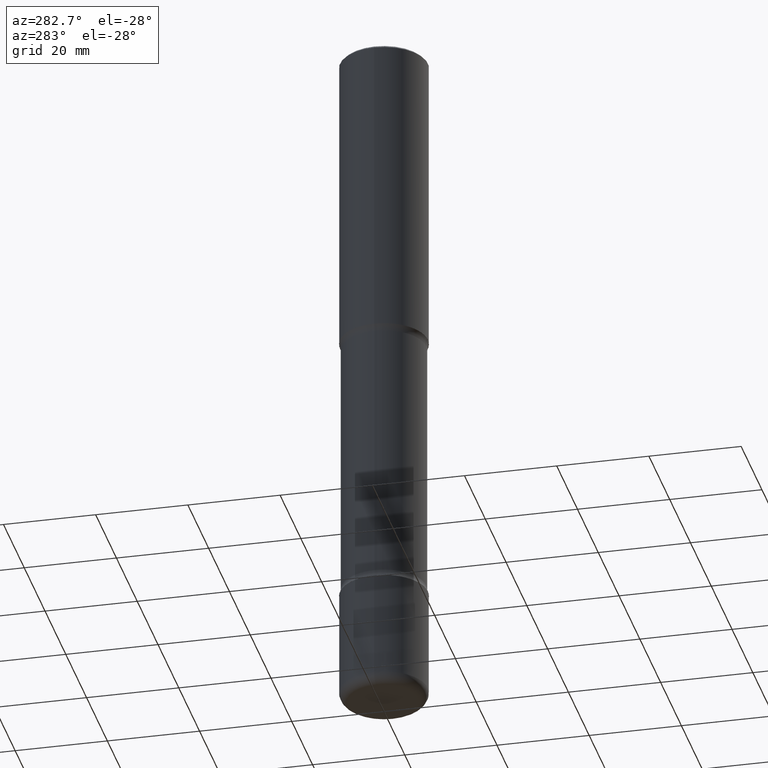
[diagram: clean part render]
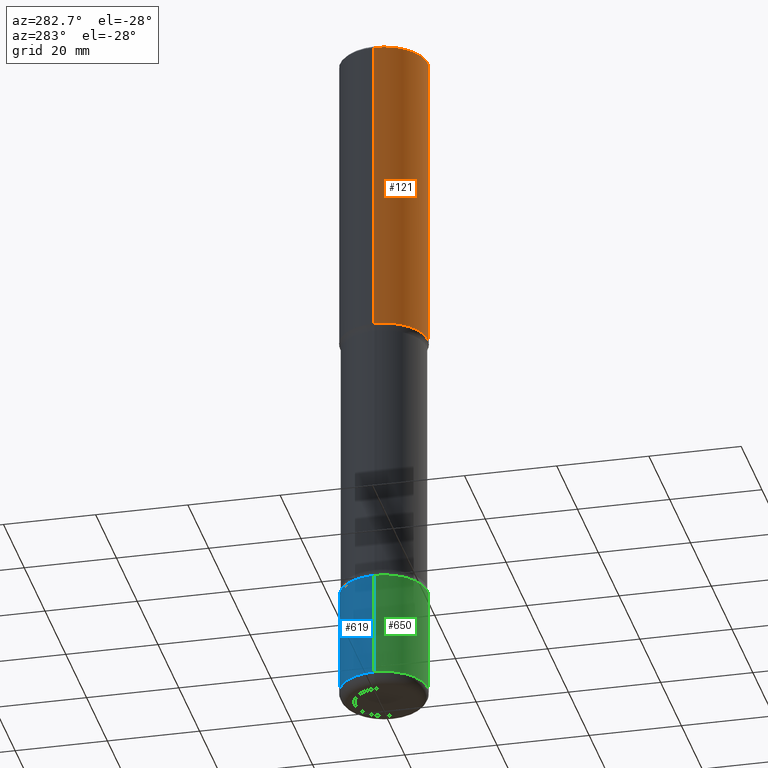
[diagram: same view with three faces highlighted in distinct colors, each labeled with its STEP entity id]
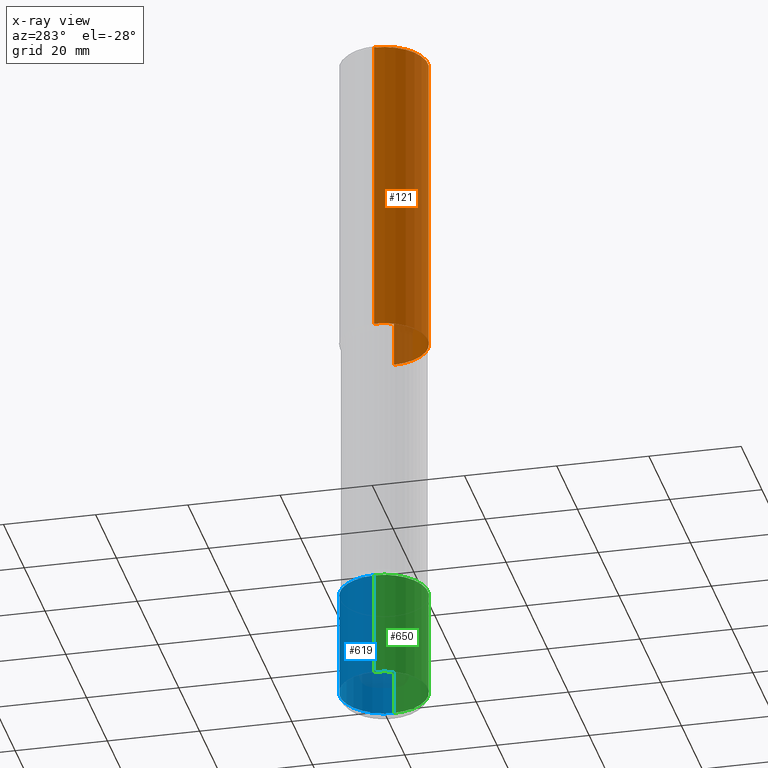
[diagram: x-ray of the same camera — body ghosted, the three highlighted faces saturated]
A machine part, auxiliary view with three faces highlighted in distinct colors.
The next image is the same camera in x-ray (body ghosted, the three faces saturated) — at least one of them is partly hidden behind the body in this view.
Their STEP definitions:

[orange] entity #121 — the highlighted cylindrical surface (partial cylindrical patch) has radius 9.525 mm, axis along (-0, 0, 1).
#8 = EDGE_LOOP ( 'NONE', ( #795, #75, #594, #319 ) ) ;
#54 = CARTESIAN_POINT ( 'NONE',  ( -0.3749999999999999445, -1.952948811519683864E-15, -2.625000000000000444 ) ) ;
#65 = EDGE_CURVE ( 'NONE', #635, #447, #707, .T. ) ;
#75 = ORIENTED_EDGE ( 'NONE', *, *, #467, .T. ) ;
#101 = DIRECTION ( 'NONE',  ( 1.000000000000000000, -6.982962677686266711E-15, 0.000000000000000000 ) ) ;
#121 = ADVANCED_FACE ( 'NONE', ( #273 ), #219, .T. ) ;
#143 = DIRECTION ( 'NONE',  ( -2.445468806185136597E-29, 3.491481338843145583E-15, 1.000000000000000000 ) ) ;
#145 = CARTESIAN_POINT ( 'NONE',  ( 0.3749999999999998335, -2.618611004132348439E-15, 1.828566290923475082E-29 ) ) ;
#155 = DIRECTION ( 'NONE',  ( 1.000000000000000000, -6.982962677686265922E-15, 4.876176775795935793E-29 ) ) ;
#199 = VERTEX_POINT ( 'NONE', #54 ) ;
#219 = CYLINDRICAL_SURFACE ( 'NONE', #384, 0.3749999999999998335 ) ;
#253 = CARTESIAN_POINT ( 'NONE',  ( 6.419355616235984688E-29, -9.165138514463258190E-15, -2.625000000000000444 ) ) ;
#273 = FACE_OUTER_BOUND ( 'NONE', #8, .T. ) ;
#300 = CARTESIAN_POINT ( 'NONE',  ( 0.3750000000000000555, -1.178374951859560978E-14, -2.625000000000000444 ) ) ;
#319 = ORIENTED_EDGE ( 'NONE', *, *, #65, .F. ) ;
#378 = DIRECTION ( 'NONE',  ( 1.000000000000000000, -6.982962677686266711E-15, 0.000000000000000000 ) ) ;
#384 = AXIS2_PLACEMENT_3D ( 'NONE', #605, #523, #155 ) ;
#402 = CARTESIAN_POINT ( 'NONE',  ( 4.890937612370294178E-31, -6.982962677686321191E-17, -0.02000000000000008715 ) ) ;
#437 = DIRECTION ( 'NONE',  ( -2.445468806185136597E-29, 3.491481338843145583E-15, 1.000000000000000000 ) ) ;
#447 = VERTEX_POINT ( 'NONE', #716 ) ;
#449 = LINE ( 'NONE', #700, #767 ) ;
#467 = EDGE_CURVE ( 'NONE', #199, #519, #694, .T. ) ;
#477 = VECTOR ( 'NONE', #521, 39.37007874015748143 ) ;
#519 = VERTEX_POINT ( 'NONE', #300 ) ;
#521 = DIRECTION ( 'NONE',  ( -2.445468806185136877E-29, 3.491481338843145188E-15, 1.000000000000000000 ) ) ;
#523 = DIRECTION ( 'NONE',  ( -2.445468806185136597E-29, 3.491481338843145583E-15, 1.000000000000000000 ) ) ;
#530 = CARTESIAN_POINT ( 'NONE',  ( -0.3749999999999996669, 2.548781377355484352E-15, -0.02000000000000008715 ) ) ;
#594 = ORIENTED_EDGE ( 'NONE', *, *, #779, .T. ) ;
#605 = CARTESIAN_POINT ( 'NONE',  ( 0.000000000000000000, 0.000000000000000000, 0.000000000000000000 ) ) ;
#635 = VERTEX_POINT ( 'NONE', #530 ) ;
#663 = LINE ( 'NONE', #145, #477 ) ;
#694 = CIRCLE ( 'NONE', #756, 0.3750000000000000555 ) ;
#700 = CARTESIAN_POINT ( 'NONE',  ( -0.3749999999999998335, 2.664535259100374514E-15, -1.844600658845588757E-29 ) ) ;
#707 = CIRCLE ( 'NONE', #786, 0.3749999999999996669 ) ;
#716 = CARTESIAN_POINT ( 'NONE',  ( 0.3749999999999996669, -2.642516375941185662E-15, -0.02000000000000008715 ) ) ;
#733 = EDGE_CURVE ( 'NONE', #199, #635, #449, .T. ) ;
#756 = AXIS2_PLACEMENT_3D ( 'NONE', #253, #437, #378 ) ;
#767 = VECTOR ( 'NONE', #769, 39.37007874015748143 ) ;
#769 = DIRECTION ( 'NONE',  ( -2.445468806185136877E-29, 3.491481338843145188E-15, 1.000000000000000000 ) ) ;
#779 = EDGE_CURVE ( 'NONE', #519, #447, #663, .T. ) ;
#786 = AXIS2_PLACEMENT_3D ( 'NONE', #402, #143, #101 ) ;
#795 = ORIENTED_EDGE ( 'NONE', *, *, #733, .F. ) ;

[blue] entity #619 — the highlighted cylindrical surface (partial cylindrical patch) has radius 9.525 mm, axis along (-0, 0, 1).
#14 = LINE ( 'NONE', #514, #788 ) ;
#34 = CARTESIAN_POINT ( 'NONE',  ( 1.445272064455415567E-28, -2.063465471256298944E-14, -5.910000000000000142 ) ) ;
#42 = CARTESIAN_POINT ( 'NONE',  ( 0.000000000000000000, 0.000000000000000000, 0.000000000000000000 ) ) ;
#49 = VERTEX_POINT ( 'NONE', #708 ) ;
#71 = ORIENTED_EDGE ( 'NONE', *, *, #573, .T. ) ;
#82 = LINE ( 'NONE', #415, #512 ) ;
#112 = DIRECTION ( 'NONE',  ( 1.000000000000000000, -6.982962677686266711E-15, 0.000000000000000000 ) ) ;
#132 = VERTEX_POINT ( 'NONE', #765 ) ;
#152 = DIRECTION ( 'NONE',  ( 1.000000000000000000, -6.982962677686261189E-15, 0.000000000000000000 ) ) ;
#264 = ORIENTED_EDGE ( 'NONE', *, *, #379, .T. ) ;
#288 = DIRECTION ( 'NONE',  ( 1.000000000000000000, -6.982962677686265922E-15, 4.876176775795935793E-29 ) ) ;
#296 = AXIS2_PLACEMENT_3D ( 'NONE', #42, #706, #288 ) ;
#307 = AXIS2_PLACEMENT_3D ( 'NONE', #34, #602, #152 ) ;
#314 = VERTEX_POINT ( 'NONE', #349 ) ;
#348 = ORIENTED_EDGE ( 'NONE', *, *, #721, .F. ) ;
#349 = CARTESIAN_POINT ( 'NONE',  ( 0.3750000000000003886, -2.325326571669533946E-14, -5.910000000000000142 ) ) ;
#379 = EDGE_CURVE ( 'NONE', #314, #425, #511, .T. ) ;
#415 = CARTESIAN_POINT ( 'NONE',  ( 0.3750000000000000555, -2.618611004132350016E-15, 1.828566290923476203E-29 ) ) ;
#420 = CARTESIAN_POINT ( 'NONE',  ( -0.3750000000000003886, -1.797011945346261375E-14, -5.910000000000000142 ) ) ;
#425 = VERTEX_POINT ( 'NONE', #420 ) ;
#427 = EDGE_CURVE ( 'NONE', #132, #49, #567, .T. ) ;
#505 = EDGE_LOOP ( 'NONE', ( #264, #71, #689, #348 ) ) ;
#511 = CIRCLE ( 'NONE', #307, 0.3750000000000000555 ) ;
#512 = VECTOR ( 'NONE', #513, 39.37007874015748143 ) ;
#513 = DIRECTION ( 'NONE',  ( -2.445468806185136877E-29, 3.491481338843145188E-15, 1.000000000000000000 ) ) ;
#514 = CARTESIAN_POINT ( 'NONE',  ( -0.3750000000000000555, 2.664535259100376091E-15, -1.844600658845589598E-29 ) ) ;
#567 = CIRCLE ( 'NONE', #675, 0.3750000000000000555 ) ;
#573 = EDGE_CURVE ( 'NONE', #425, #49, #14, .T. ) ;
#602 = DIRECTION ( 'NONE',  ( -2.445468806185136597E-29, 3.491481338843145583E-15, 1.000000000000000000 ) ) ;
#604 = FACE_OUTER_BOUND ( 'NONE', #505, .T. ) ;
#619 = ADVANCED_FACE ( 'NONE', ( #604 ), #719, .T. ) ;
#652 = DIRECTION ( 'NONE',  ( -2.445468806185136597E-29, 3.491481338843145583E-15, 1.000000000000000000 ) ) ;
#654 = DIRECTION ( 'NONE',  ( -2.445468806185136877E-29, 3.491481338843145188E-15, 1.000000000000000000 ) ) ;
#670 = CARTESIAN_POINT ( 'NONE',  ( 1.222734403092568523E-28, -1.745740669421572989E-14, -5.000000000000000000 ) ) ;
#675 = AXIS2_PLACEMENT_3D ( 'NONE', #670, #652, #112 ) ;
#689 = ORIENTED_EDGE ( 'NONE', *, *, #427, .F. ) ;
#706 = DIRECTION ( 'NONE',  ( -2.445468806185136597E-29, 3.491481338843145583E-15, 1.000000000000000000 ) ) ;
#708 = CARTESIAN_POINT ( 'NONE',  ( -0.3750000000000000555, -1.638149544428898397E-14, -5.000000000000000000 ) ) ;
#719 = CYLINDRICAL_SURFACE ( 'NONE', #296, 0.3750000000000000555 ) ;
#721 = EDGE_CURVE ( 'NONE', #314, #132, #82, .T. ) ;
#765 = CARTESIAN_POINT ( 'NONE',  ( 0.3750000000000000555, -2.007601769834807990E-14, -5.000000000000000000 ) ) ;
#788 = VECTOR ( 'NONE', #654, 39.37007874015748143 ) ;

[green] entity #650 — the highlighted cylindrical surface (partial cylindrical patch) has radius 9.525 mm, axis along (-0, 0, 1).
#13 = AXIS2_PLACEMENT_3D ( 'NONE', #369, #56, #310 ) ;
#14 = LINE ( 'NONE', #514, #788 ) ;
#38 = CARTESIAN_POINT ( 'NONE',  ( 1.222734403092568523E-28, -1.745740669421572989E-14, -5.000000000000000000 ) ) ;
#49 = VERTEX_POINT ( 'NONE', #708 ) ;
#56 = DIRECTION ( 'NONE',  ( -2.445468806185136597E-29, 3.491481338843145583E-15, 1.000000000000000000 ) ) ;
#82 = LINE ( 'NONE', #415, #512 ) ;
#91 = DIRECTION ( 'NONE',  ( -2.445468806185136597E-29, 3.491481338843145583E-15, 1.000000000000000000 ) ) ;
#132 = VERTEX_POINT ( 'NONE', #765 ) ;
#205 = CYLINDRICAL_SURFACE ( 'NONE', #697, 0.3750000000000000555 ) ;
#229 = DIRECTION ( 'NONE',  ( -2.445468806185136597E-29, 3.491481338843145583E-15, 1.000000000000000000 ) ) ;
#252 = ORIENTED_EDGE ( 'NONE', *, *, #577, .F. ) ;
#310 = DIRECTION ( 'NONE',  ( 1.000000000000000000, -6.982962677686261189E-15, 0.000000000000000000 ) ) ;
#314 = VERTEX_POINT ( 'NONE', #349 ) ;
#331 = DIRECTION ( 'NONE',  ( 1.000000000000000000, -6.982962677686266711E-15, 0.000000000000000000 ) ) ;
#349 = CARTESIAN_POINT ( 'NONE',  ( 0.3750000000000003886, -2.325326571669533946E-14, -5.910000000000000142 ) ) ;
#369 = CARTESIAN_POINT ( 'NONE',  ( 1.445272064455415567E-28, -2.063465471256298944E-14, -5.910000000000000142 ) ) ;
#387 = ORIENTED_EDGE ( 'NONE', *, *, #721, .T. ) ;
#410 = FACE_OUTER_BOUND ( 'NONE', #455, .T. ) ;
#415 = CARTESIAN_POINT ( 'NONE',  ( 0.3750000000000000555, -2.618611004132350016E-15, 1.828566290923476203E-29 ) ) ;
#420 = CARTESIAN_POINT ( 'NONE',  ( -0.3750000000000003886, -1.797011945346261375E-14, -5.910000000000000142 ) ) ;
#425 = VERTEX_POINT ( 'NONE', #420 ) ;
#455 = EDGE_LOOP ( 'NONE', ( #682, #691, #387, #252 ) ) ;
#508 = EDGE_CURVE ( 'NONE', #425, #314, #747, .T. ) ;
#512 = VECTOR ( 'NONE', #513, 39.37007874015748143 ) ;
#513 = DIRECTION ( 'NONE',  ( -2.445468806185136877E-29, 3.491481338843145188E-15, 1.000000000000000000 ) ) ;
#514 = CARTESIAN_POINT ( 'NONE',  ( -0.3750000000000000555, 2.664535259100376091E-15, -1.844600658845589598E-29 ) ) ;
#535 = CARTESIAN_POINT ( 'NONE',  ( 0.000000000000000000, 0.000000000000000000, 0.000000000000000000 ) ) ;
#544 = CIRCLE ( 'NONE', #710, 0.3750000000000000555 ) ;
#573 = EDGE_CURVE ( 'NONE', #425, #49, #14, .T. ) ;
#577 = EDGE_CURVE ( 'NONE', #49, #132, #544, .T. ) ;
#650 = ADVANCED_FACE ( 'NONE', ( #410 ), #205, .T. ) ;
#654 = DIRECTION ( 'NONE',  ( -2.445468806185136877E-29, 3.491481338843145188E-15, 1.000000000000000000 ) ) ;
#682 = ORIENTED_EDGE ( 'NONE', *, *, #573, .F. ) ;
#691 = ORIENTED_EDGE ( 'NONE', *, *, #508, .T. ) ;
#697 = AXIS2_PLACEMENT_3D ( 'NONE', #535, #229, #778 ) ;
#708 = CARTESIAN_POINT ( 'NONE',  ( -0.3750000000000000555, -1.638149544428898397E-14, -5.000000000000000000 ) ) ;
#710 = AXIS2_PLACEMENT_3D ( 'NONE', #38, #91, #331 ) ;
#721 = EDGE_CURVE ( 'NONE', #314, #132, #82, .T. ) ;
#747 = CIRCLE ( 'NONE', #13, 0.3750000000000000555 ) ;
#765 = CARTESIAN_POINT ( 'NONE',  ( 0.3750000000000000555, -2.007601769834807990E-14, -5.000000000000000000 ) ) ;
#778 = DIRECTION ( 'NONE',  ( 1.000000000000000000, -6.982962677686265922E-15, 4.876176775795935793E-29 ) ) ;
#788 = VECTOR ( 'NONE', #654, 39.37007874015748143 ) ;